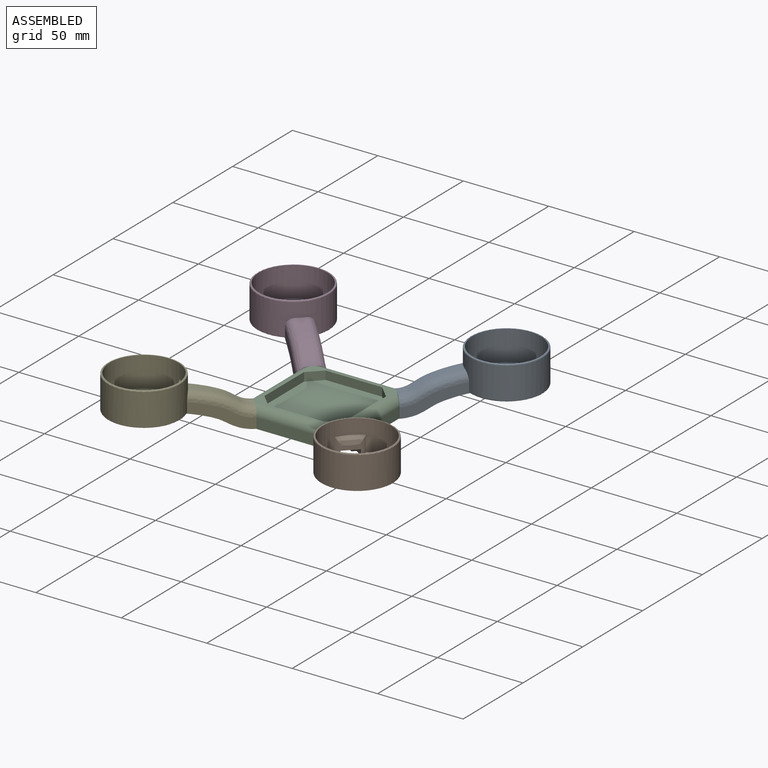
[diagram: assembled view]
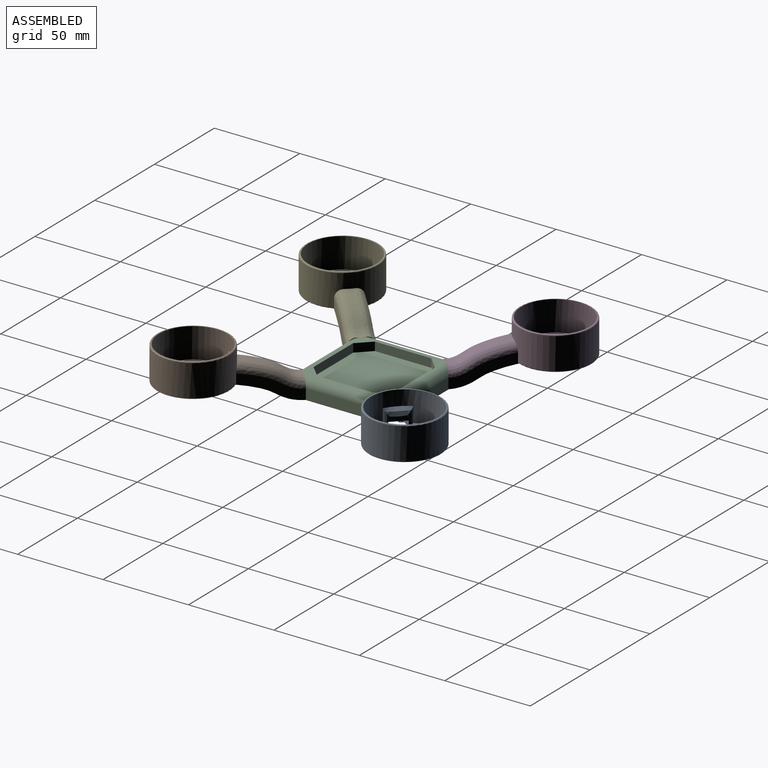
[diagram: assembled view, second angle]
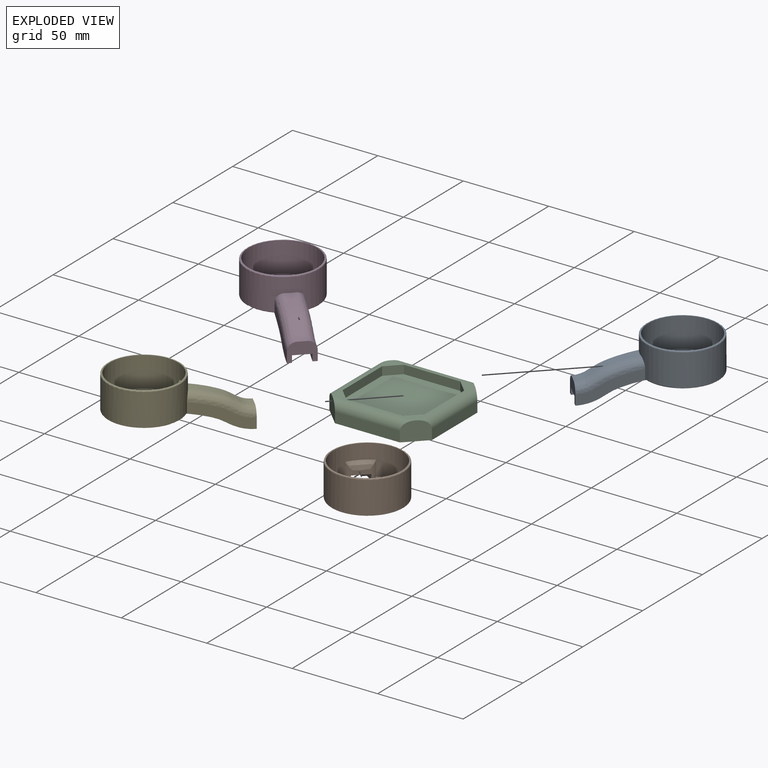
[diagram: exploded view]
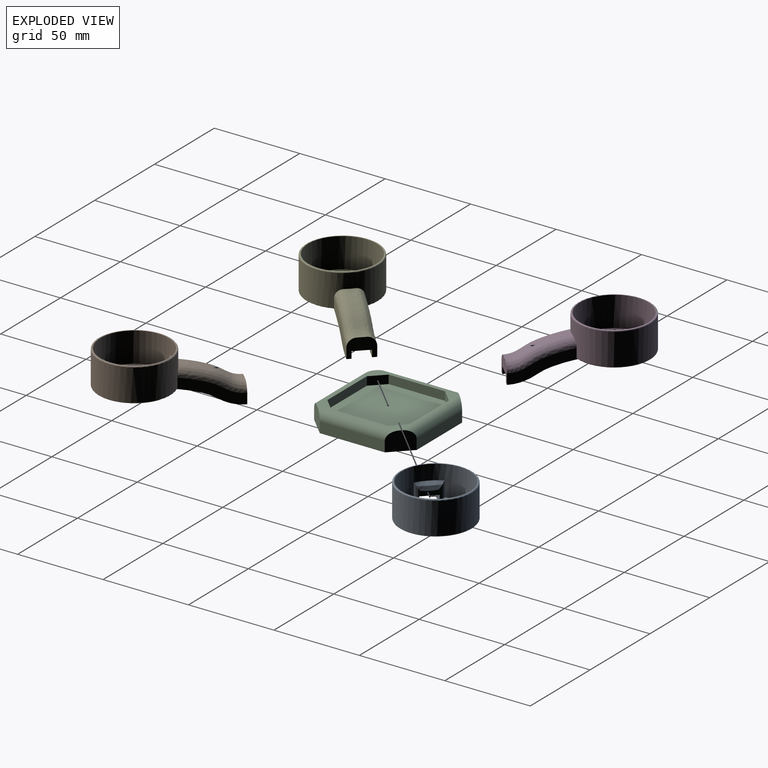
[diagram: exploded view, second angle]
ASSEMBLY  parts=5 mates=4
PART A: 25 faces, bbox 76.9x45.6x30.8 mm
  f0: plane 41x39.58mm, normal (0,0,-1), area 1263.7mm2, adj f2,f3,f7,f12,f13,f16,f17,f20
  f1: plane 40x38.54mm, normal (0,0,1), area 1208.6mm2, adj f2,f3,f5,f7,f22,f23
  f2: plane 2.03x2mm, normal (0,1,0), area 4.1mm2, adj f0,f1,f7,f16,f23
  f3: plane 2.03x2mm, normal (0,-1,0), area 4.1mm2, adj f0,f1,f7,f17,f22
  f4: cylinder r=21mm len=42mm, axis (0,0,-1), area 2323.1mm2, adj f9,f12,f13,f18,f19,f20,f21
  f5: cylinder r=20mm len=40mm, axis (0,0,-1), area 2074mm2, adj f1,f6,f22,f23,f24
  f6: plane 41x41mm, normal (0,0,1), area 63.6mm2, adj f5,f21
  f7: plane 14x2mm, normal (1,0,0), area 28mm2, adj f0,f1,f2,f3
  f8: bspline ~36.04x11mm, area 380.9mm2, adj f10,f11,f14,f15,f22,f23
  f9: bspline ~34.97x15mm, area 173.6mm2, adj f4,f15,f18,f19
  f10: plane 36.04x15mm, normal (0,1,0), area 150.5mm2, adj f8,f15,f16,f23
  f11: plane 36.04x15mm, normal (0,-1,0), area 150.5mm2, adj f8,f15,f17,f22
  f12: plane 36.21x16.9mm, normal (0,-1,0), area 216.1mm2, adj f0,f4,f15,f16,f18,f20
  f13: plane 36.21x16.9mm, normal (0,1,0), area 216.1mm2, adj f0,f4,f15,f17,f19,f20
  f14: plane 8.9x2.81mm, normal (-1,0,0), area 23mm2, adj f8,f22,f23,f24
  f15: plane 15.16x11.16mm, normal (1,0,0), area 114.3mm2, adj f8,f9,f10,f11,f12,f13,f16,f17
  f16: bspline ~36.15x11mm, area 94.7mm2, adj f0,f2,f10,f12,f15,f23
  f17: bspline ~36.15x11mm, area 96.1mm2, adj f0,f3,f11,f13,f15,f22
  f18: bspline ~34.86x15.84mm, area 277mm2, adj f4,f9,f12,f15
  f19: bspline ~34.73x15.86mm, area 277mm2, adj f4,f9,f13,f15
  f20: torus R=20.5mm, axis (0,0,1), area 90.6mm2, adj f0,f4,f12,f13
  f21: torus R=20.5mm, axis (0,0,1), area 102.7mm2, adj f4,f6
  f22: cylinder r=5mm len=10.96mm, axis (0,0,-1), area 25.7mm2, adj f1,f3,f5,f8,f11,f14,f17,f24
  f23: cylinder r=5mm len=10.96mm, axis (0,0,-1), area 25.7mm2, adj f1,f2,f5,f8,f10,f14,f16,f24
  f24: bspline ~18.36x4.48mm, area 59.9mm2, adj f5,f14,f22,f23
PART B: same geometry as A
PART C: 23 faces, bbox 60x60x11 mm
  f0: plane 50x50mm, normal (0,0,1), area 306.1mm2, adj f6,f7,f8,f9,f10,f11,f12,f13
  f1: plane 38x6mm, normal (1,0,0), area 228mm2, adj f5,f6,f7,f21
  f2: plane 38x6mm, normal (0,1,0), area 228mm2, adj f5,f6,f9,f22
  f3: plane 38x6mm, normal (-1,0,0), area 228mm2, adj f5,f8,f9,f20
  f4: plane 38x6mm, normal (0,-1,0), area 228mm2, adj f5,f7,f8,f19
  f5: plane 60x60mm, normal (0,0,-1), area 3358mm2, adj f1,f2,f3,f4,f6,f7,f8,f9
  f6: plane 11x11mm, normal (0.71,0.71,0), area 155.9mm2, adj f0,f1,f2,f5,f21,f22
  f7: plane 11x11mm, normal (0.71,-0.71,0), area 155.9mm2, adj f0,f1,f4,f5,f19,f21
  f8: plane 11x11mm, normal (-0.71,-0.71,0), area 155.9mm2, adj f0,f3,f4,f5,f19,f20
  f9: plane 11x11mm, normal (-0.71,0.71,0), area 155.9mm2, adj f0,f2,f3,f5,f20,f22
  f10: plane 33.03x5mm, normal (-1,0,0), area 165.1mm2, adj f0,f14,f15,f16
  f11: plane 33.03x5mm, normal (0,-1,0), area 165.1mm2, adj f0,f14,f15,f18
  f12: plane 33.03x5mm, normal (1,0,0), area 165.1mm2, adj f0,f14,f17,f18
  f13: plane 33.03x5mm, normal (0,1,0), area 165.1mm2, adj f0,f14,f16,f17
  f14: plane 48x48mm, normal (0,0,1), area 2191.9mm2, adj f10,f11,f12,f13,f15,f16,f17,f18
  f15: plane 7.49x7.49mm, normal (-0.71,-0.71,0), area 52.9mm2, adj f0,f10,f11,f14
  f16: plane 7.49x7.49mm, normal (-0.71,0.71,0), area 52.9mm2, adj f0,f10,f13,f14
  f17: plane 7.49x7.49mm, normal (0.71,0.71,0), area 52.9mm2, adj f0,f12,f13,f14
  f18: plane 7.49x7.49mm, normal (0.71,-0.71,0), area 52.9mm2, adj f0,f11,f12,f14
  f19: cylinder r=5mm len=48mm, axis (-1,0,0), area 327mm2, adj f0,f4,f7,f8
  f20: cylinder r=5mm len=48mm, axis (0,1,0), area 327mm2, adj f0,f3,f8,f9
  f21: cylinder r=5mm len=48mm, axis (0,-1,0), area 327mm2, adj f0,f1,f6,f7
  f22: cylinder r=5mm len=48mm, axis (1,0,0), area 327mm2, adj f0,f2,f6,f9
PART D: same geometry as A
PART E: same geometry as A
PLACE A rot(axis=(0,0,-1),135deg) t=(116.64,98.25,-60.55)mm
PLACE B rot(axis=(0,0,1),135deg) t=(116.14,-25.97,-60.55)mm
PLACE C t=(53.79,36.39,-71.55)mm
PLACE D rot(axis=(0,0,-1),45deg) t=(-8.57,98.75,-60.55)mm
PLACE E rot(axis=(0,0,1),45deg) t=(-8.57,-25.97,-60.55)mm
MATE slider A.f15 <-> C.f6  axis (-0.71,-0.71,0) through (78.79,60.39,-60.55)mm
MATE slider E.f15 <-> C.f8  axis (0.71,0.71,0) through (29.29,11.89,-60.55)mm
MATE slider D.f15 <-> C.f9  axis (0.71,-0.71,0) through (29.29,60.89,-60.55)mm
MATE slider B.f15 <-> C.f7  axis (-0.71,0.71,0) through (78.29,11.89,-60.55)mm
